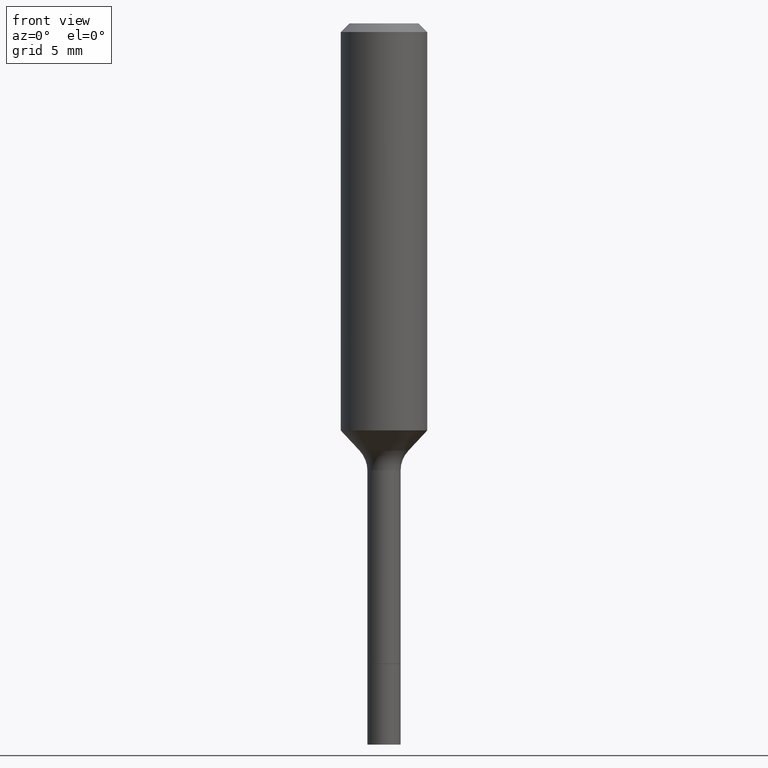
[diagram: clean part render]
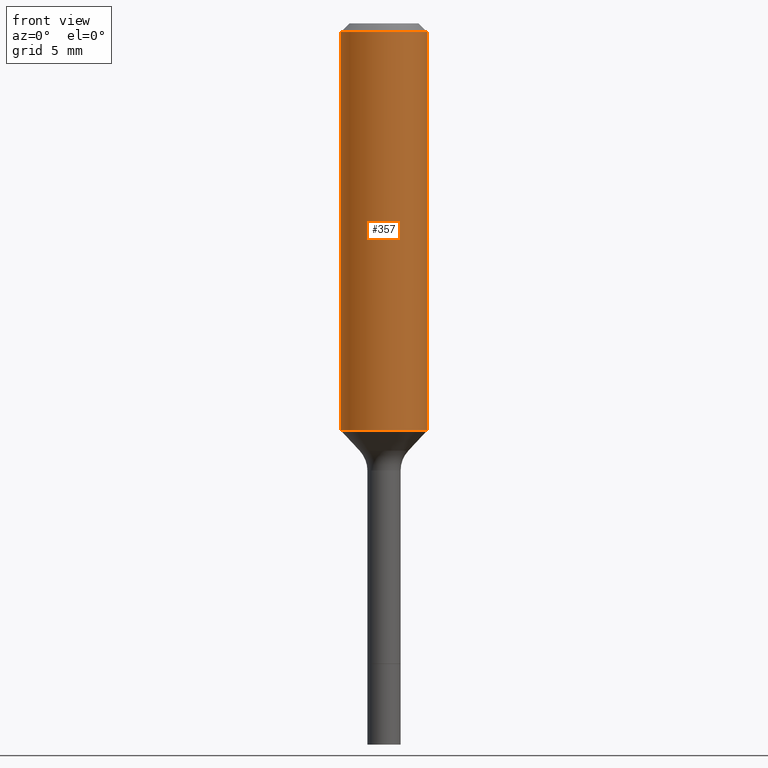
[diagram: same view with one face highlighted and labeled with its STEP entity id]
A machine part, front view. The second image highlights one B-rep face of the part: STEP entity #357.
In plain terms, the highlighted cylindrical surface (partial cylindrical patch) has radius 2.9997 mm, axis along (-0, 0, 1).
Its self-contained STEP definition (entity closure, byte-faithful):
#10 = DIRECTION ( 'NONE',  ( 1.000000000000000000, -6.982962677686265133E-15, 0.000000000000000000 ) ) ;
#18 = EDGE_CURVE ( 'NONE', #481, #494, #454, .T. ) ;
#33 = AXIS2_PLACEMENT_3D ( 'NONE', #128, #364, #10 ) ;
#37 = CARTESIAN_POINT ( 'NONE',  ( 0.1181000000000001354, -4.703439871600973275E-15, -1.110918719861007542 ) ) ;
#40 = EDGE_CURVE ( 'NONE', #494, #279, #174, .T. ) ;
#56 = ORIENTED_EDGE ( 'NONE', *, *, #40, .F. ) ;
#60 = CARTESIAN_POINT ( 'NONE',  ( -0.1180999999999999966, -1.141459413362170855E-15, -0.02362000000000013741 ) ) ;
#61 = ORIENTED_EDGE ( 'NONE', *, *, #466, .T. ) ;
#86 = CYLINDRICAL_SURFACE ( 'NONE', #176, 0.1181000000000000660 ) ;
#102 = CARTESIAN_POINT ( 'NONE',  ( -0.1181000000000000660, 8.391509709326787887E-16, -5.809262341591047287E-30 ) ) ;
#128 = CARTESIAN_POINT ( 'NONE',  ( 2.716717075627218556E-29, -3.878751979366224224E-15, -1.110918719861007542 ) ) ;
#142 = LINE ( 'NONE', #216, #332 ) ;
#163 = EDGE_LOOP ( 'NONE', ( #360, #181, #61, #56 ) ) ;
#174 = CIRCLE ( 'NONE', #307, 0.1180999999999999966 ) ;
#176 = AXIS2_PLACEMENT_3D ( 'NONE', #406, #211, #202 ) ;
#181 = ORIENTED_EDGE ( 'NONE', *, *, #428, .T. ) ;
#184 = VECTOR ( 'NONE', #220, 39.37007874015748143 ) ;
#188 = CARTESIAN_POINT ( 'NONE',  ( 5.776197320209326656E-31, -8.246878922347558061E-17, -0.02362000000000013741 ) ) ;
#202 = DIRECTION ( 'NONE',  ( 1.000000000000000000, -6.982962677686266711E-15, 4.876176775795936353E-29 ) ) ;
#211 = DIRECTION ( 'NONE',  ( -2.445468806185136597E-29, 3.491481338843145583E-15, 1.000000000000000000 ) ) ;
#216 = CARTESIAN_POINT ( 'NONE',  ( 0.1181000000000000660, -8.246878922347485584E-16, 5.758764772215003944E-30 ) ) ;
#220 = DIRECTION ( 'NONE',  ( -2.445468806185136877E-29, 3.491481338843145188E-15, 1.000000000000000000 ) ) ;
#259 = VERTEX_POINT ( 'NONE', #37 ) ;
#279 = VERTEX_POINT ( 'NONE', #437 ) ;
#307 = AXIS2_PLACEMENT_3D ( 'NONE', #188, #499, #341 ) ;
#327 = FACE_OUTER_BOUND ( 'NONE', #163, .T. ) ;
#332 = VECTOR ( 'NONE', #498, 39.37007874015748143 ) ;
#340 = CARTESIAN_POINT ( 'NONE',  ( -0.1181000000000001354, -3.039601008433544844E-15, -1.110918719861007542 ) ) ;
#341 = DIRECTION ( 'NONE',  ( 1.000000000000000000, -6.982962677686266711E-15, 0.000000000000000000 ) ) ;
#357 = ADVANCED_FACE ( 'NONE', ( #327 ), #86, .T. ) ;
#360 = ORIENTED_EDGE ( 'NONE', *, *, #18, .F. ) ;
#364 = DIRECTION ( 'NONE',  ( -2.445468806185136597E-29, 3.491481338843145583E-15, 1.000000000000000000 ) ) ;
#406 = CARTESIAN_POINT ( 'NONE',  ( 0.000000000000000000, 0.000000000000000000, 0.000000000000000000 ) ) ;
#428 = EDGE_CURVE ( 'NONE', #481, #259, #435, .T. ) ;
#435 = CIRCLE ( 'NONE', #33, 0.1181000000000001354 ) ;
#437 = CARTESIAN_POINT ( 'NONE',  ( 0.1180999999999999966, -9.071566814582237199E-16, -0.02362000000000013741 ) ) ;
#454 = LINE ( 'NONE', #102, #184 ) ;
#466 = EDGE_CURVE ( 'NONE', #259, #279, #142, .T. ) ;
#481 = VERTEX_POINT ( 'NONE', #340 ) ;
#494 = VERTEX_POINT ( 'NONE', #60 ) ;
#498 = DIRECTION ( 'NONE',  ( -2.445468806185136877E-29, 3.491481338843145188E-15, 1.000000000000000000 ) ) ;
#499 = DIRECTION ( 'NONE',  ( -2.445468806185136597E-29, 3.491481338843145583E-15, 1.000000000000000000 ) ) ;